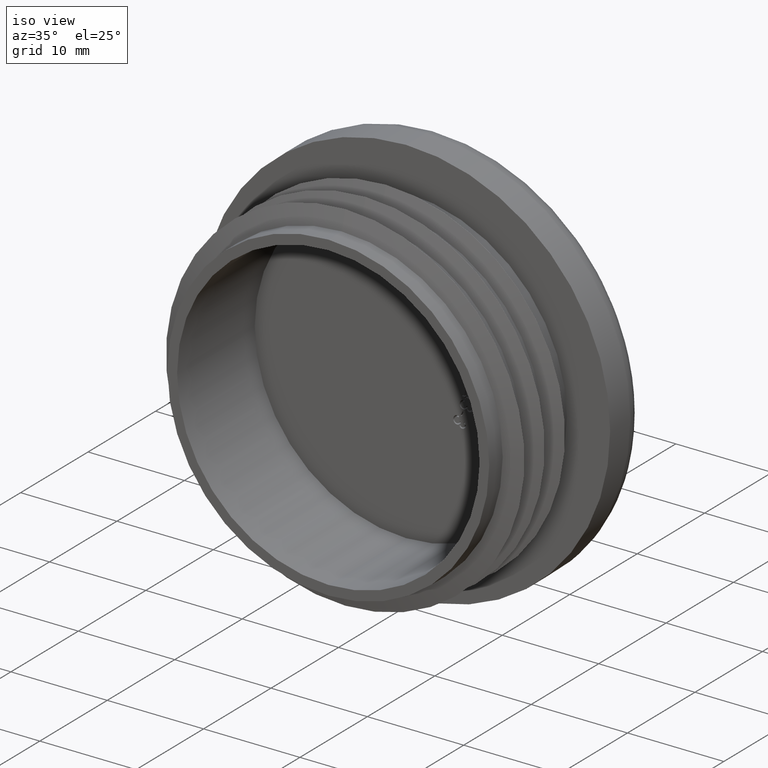
[diagram: clean part render]
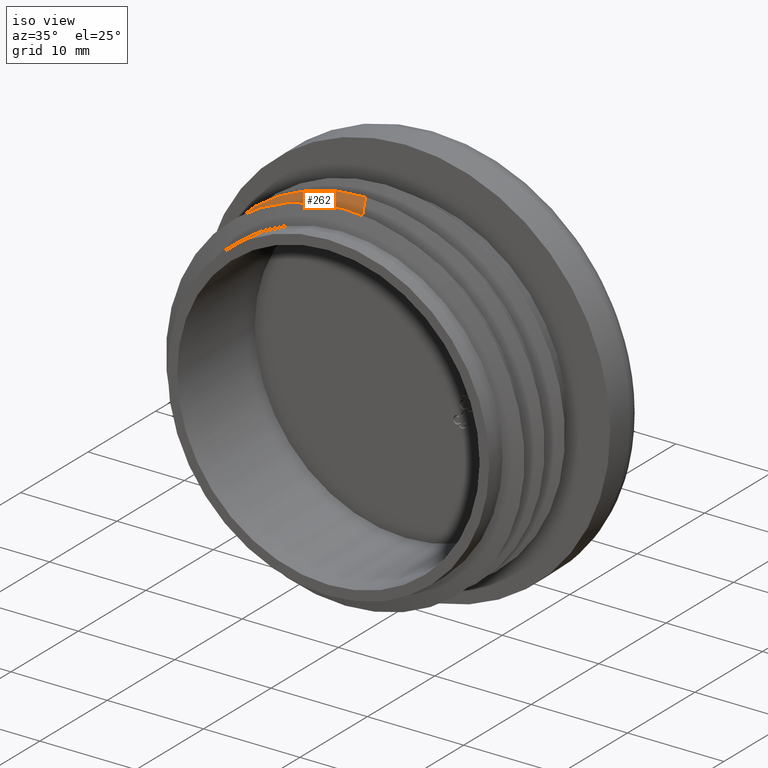
[diagram: same view with one face highlighted and labeled with its STEP entity id]
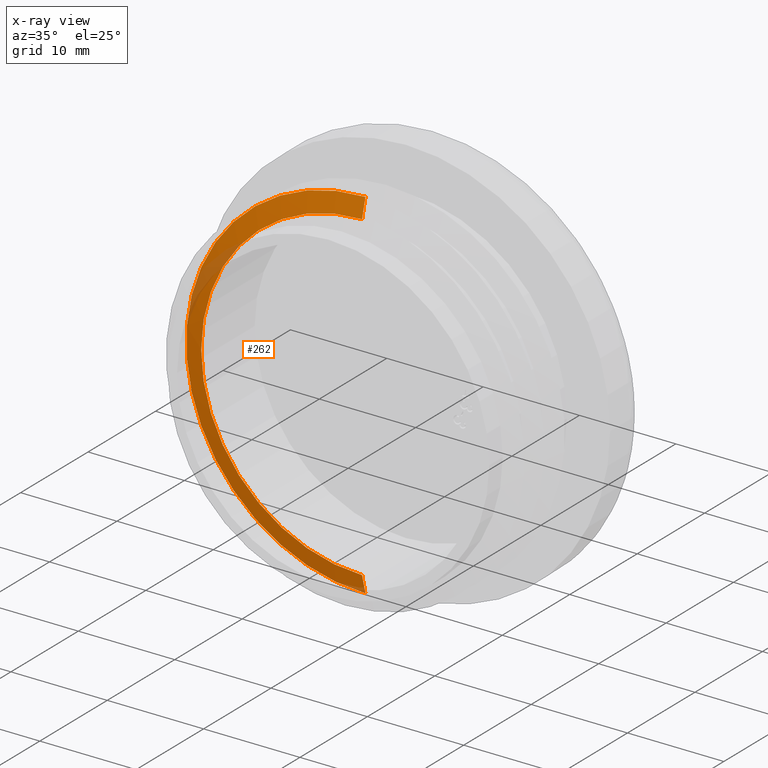
[diagram: x-ray of the same camera — body ghosted, the highlighted face saturated]
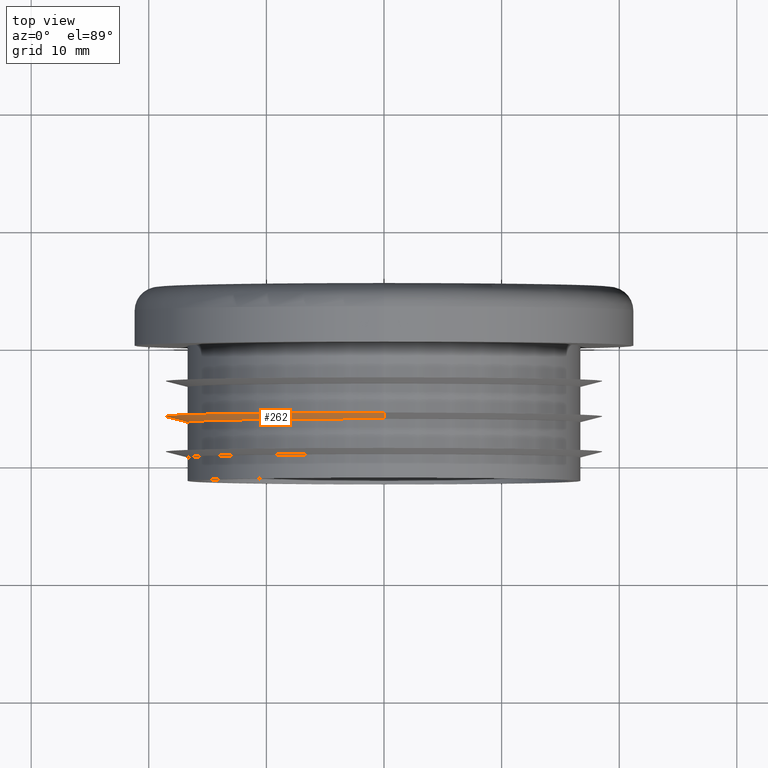
[diagram: same view with one face highlighted and labeled with its STEP entity id]
A machine part, iso view. The second image highlights one B-rep face of the part: STEP entity #262.
The next image is the same camera in x-ray: the body ghosted, the highlighted face saturated — about 9% of this face is hidden behind the body in this view.
A second angle (top view) of the same face is appended — the face is thin or edge-on in the first view.
In plain terms, the highlighted conical surface has half-angle 75.256 deg.
Its self-contained STEP definition (entity closure, byte-faithful):
#68 = CIRCLE ( 'NONE', #3269, 16.69999999999999900 ) ;
#190 = VECTOR ( 'NONE', #2377, 1000.000000000000200 ) ;
#212 = ORIENTED_EDGE ( 'NONE', *, *, #483, .T. ) ;
#262 = ADVANCED_FACE ( 'NONE', ( #454 ), #4697, .T. ) ;
#388 = AXIS2_PLACEMENT_3D ( 'NONE', #4528, #4798, #4509 ) ;
#454 = FACE_OUTER_BOUND ( 'NONE', #2285, .T. ) ;
#483 = EDGE_CURVE ( 'NONE', #1582, #6453, #10433, .T. ) ;
#597 = DIRECTION ( 'NONE',  ( -0.0000000000000000000, 1.000000000000000000, -0.0000000000000000000 ) ) ;
#663 = CARTESIAN_POINT ( 'NONE',  ( 0.0000000000000000000, -6.000000000000000000, 0.0000000000000000000 ) ) ;
#728 = CIRCLE ( 'NONE', #3072, 18.59999999999999800 ) ;
#1067 = VERTEX_POINT ( 'NONE', #1262 ) ;
#1262 = CARTESIAN_POINT ( 'NONE',  ( 2.045160154576079800E-015, -6.500000000000000900, -16.69999999999999900 ) ) ;
#1519 = DIRECTION ( 'NONE',  ( 0.0000000000000000000, 0.0000000000000000000, 1.000000000000000000 ) ) ;
#1582 = VERTEX_POINT ( 'NONE', #6521 ) ;
#2285 = EDGE_LOOP ( 'NONE', ( #4399, #9787, #212, #8689 ) ) ;
#2377 = DIRECTION ( 'NONE',  ( 1.184324736595607500E-016, 0.2544932992796441500, -0.9670745372626462500 ) ) ;
#2461 = LINE ( 'NONE', #5699, #190 ) ;
#2896 = CARTESIAN_POINT ( 'NONE',  ( 0.0000000000000000000, -6.000000000000000000, 18.59999999999999800 ) ) ;
#3072 = AXIS2_PLACEMENT_3D ( 'NONE', #663, #6530, #1519 ) ;
#3269 = AXIS2_PLACEMENT_3D ( 'NONE', #5639, #597, #6470 ) ;
#3583 = DIRECTION ( 'NONE',  ( 0.0000000000000000000, 0.2544932992796441500, 0.9670745372626462500 ) ) ;
#4148 = CARTESIAN_POINT ( 'NONE',  ( 0.0000000000000000000, -6.500000000000000900, 16.69999999999999900 ) ) ;
#4399 = ORIENTED_EDGE ( 'NONE', *, *, #6205, .F. ) ;
#4509 = DIRECTION ( 'NONE',  ( 0.0000000000000000000, 0.0000000000000000000, 1.000000000000000000 ) ) ;
#4528 = CARTESIAN_POINT ( 'NONE',  ( 0.0000000000000000000, -6.500000000000000900, 0.0000000000000000000 ) ) ;
#4697 = CONICAL_SURFACE ( 'NONE', #388, 16.69999999999999900, 1.313472611823807600 ) ;
#4798 = DIRECTION ( 'NONE',  ( -0.0000000000000000000, 1.000000000000000000, -0.0000000000000000000 ) ) ;
#5639 = CARTESIAN_POINT ( 'NONE',  ( 0.0000000000000000000, -6.500000000000000900, 0.0000000000000000000 ) ) ;
#5699 = CARTESIAN_POINT ( 'NONE',  ( 2.045160154576079800E-015, -6.500000000000000900, -16.69999999999999900 ) ) ;
#5863 = EDGE_CURVE ( 'NONE', #1067, #1582, #68, .T. ) ;
#6193 = EDGE_CURVE ( 'NONE', #8389, #6453, #728, .T. ) ;
#6205 = EDGE_CURVE ( 'NONE', #1067, #8389, #2461, .T. ) ;
#6384 = VECTOR ( 'NONE', #3583, 1000.000000000000200 ) ;
#6453 = VERTEX_POINT ( 'NONE', #2896 ) ;
#6470 = DIRECTION ( 'NONE',  ( 0.0000000000000000000, 0.0000000000000000000, 1.000000000000000000 ) ) ;
#6521 = CARTESIAN_POINT ( 'NONE',  ( 0.0000000000000000000, -6.500000000000000900, 16.69999999999999900 ) ) ;
#6530 = DIRECTION ( 'NONE',  ( -0.0000000000000000000, 1.000000000000000000, -0.0000000000000000000 ) ) ;
#8389 = VERTEX_POINT ( 'NONE', #9231 ) ;
#8689 = ORIENTED_EDGE ( 'NONE', *, *, #6193, .F. ) ;
#9231 = CARTESIAN_POINT ( 'NONE',  ( 2.277843046414076800E-015, -6.000000000000000000, -18.59999999999999800 ) ) ;
#9787 = ORIENTED_EDGE ( 'NONE', *, *, #5863, .T. ) ;
#10433 = LINE ( 'NONE', #4148, #6384 ) ;